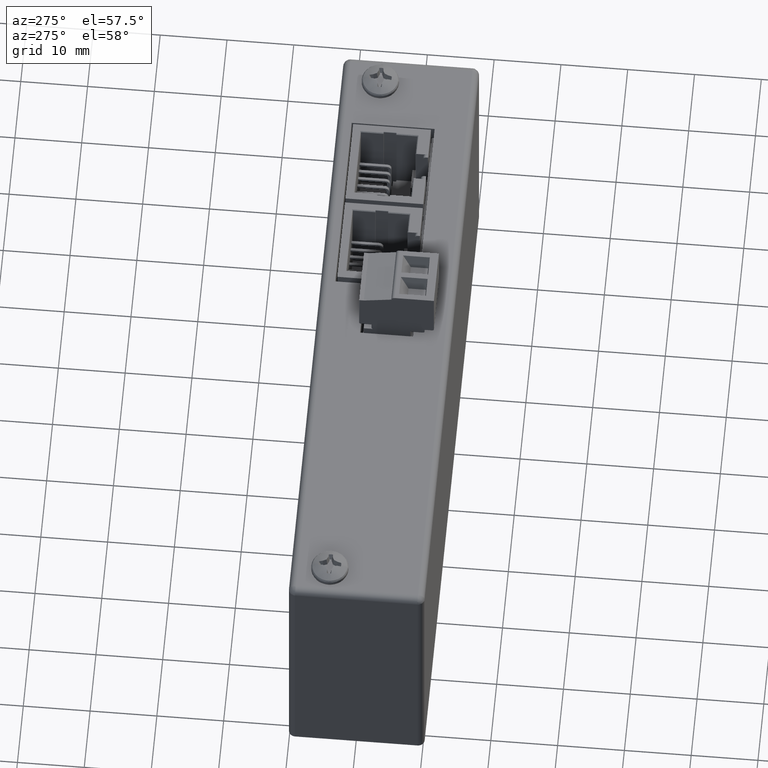
[diagram: clean part render]
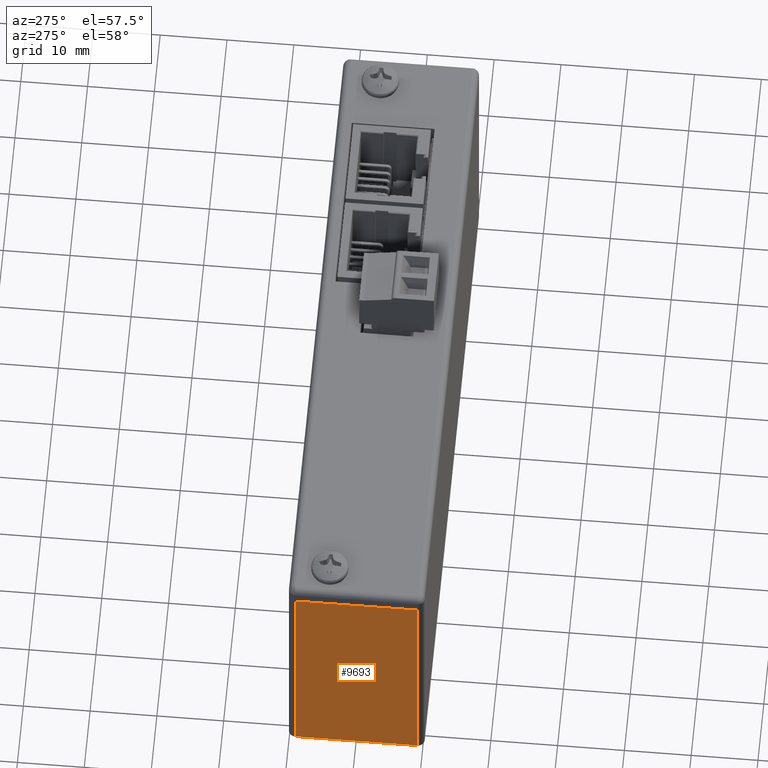
[diagram: same view with one face highlighted and labeled with its STEP entity id]
A machine part, auxiliary view. The second image highlights one B-rep face of the part: STEP entity #9693.
In plain terms, the highlighted planar face has unit normal (1, 0, 0).
Its self-contained STEP definition (entity closure, byte-faithful):
#131 = CARTESIAN_POINT ( 'NONE',  ( 1.517883041479706208E-15, 1.016000000000000014, 37.59199999999999875 ) ) ;
#159 = FACE_OUTER_BOUND ( 'NONE', #15682, .T. ) ;
#450 = VERTEX_POINT ( 'NONE', #131 ) ;
#1785 = VECTOR ( 'NONE', #25659, 1000.000000000000000 ) ;
#2169 = CARTESIAN_POINT ( 'NONE',  ( 0.000000000000000000, 19.30400000000000205, 37.59199999999999875 ) ) ;
#3930 = PLANE ( 'NONE',  #15528 ) ;
#4199 = DIRECTION ( 'NONE',  ( 0.000000000000000000, 0.000000000000000000, -1.000000000000000000 ) ) ;
#4396 = VERTEX_POINT ( 'NONE', #14614 ) ;
#6096 = CARTESIAN_POINT ( 'NONE',  ( 3.035766082959412415E-15, 1.016000000000000014, 37.59199999999999875 ) ) ;
#6155 = DIRECTION ( 'NONE',  ( 1.000000000000000000, -0.000000000000000000, 0.000000000000000000 ) ) ;
#6659 = ORIENTED_EDGE ( 'NONE', *, *, #21302, .F. ) ;
#7235 = VERTEX_POINT ( 'NONE', #2169 ) ;
#7794 = LINE ( 'NONE', #6096, #1785 ) ;
#8827 = DIRECTION ( 'NONE',  ( -0.000000000000000000, -0.000000000000000000, 1.000000000000000000 ) ) ;
#9693 = ADVANCED_FACE ( 'NONE', ( #159 ), #3930, .F. ) ;
#12665 = CARTESIAN_POINT ( 'NONE',  ( 0.000000000000000000, 2.540000000000000036, 37.59199999999999875 ) ) ;
#12980 = CARTESIAN_POINT ( 'NONE',  ( 0.000000000000000000, 19.30400000000000205, 0.000000000000000000 ) ) ;
#14567 = VECTOR ( 'NONE', #19732, 1000.000000000000000 ) ;
#14614 = CARTESIAN_POINT ( 'NONE',  ( 1.517883041479706208E-15, 1.016000000000000014, 0.000000000000000000 ) ) ;
#15528 = AXIS2_PLACEMENT_3D ( 'NONE', #19841, #6155, #4199 ) ;
#15682 = EDGE_LOOP ( 'NONE', ( #6659, #21092, #23239, #24336 ) ) ;
#17326 = LINE ( 'NONE', #25800, #25392 ) ;
#17705 = EDGE_CURVE ( 'NONE', #450, #7235, #20615, .T. ) ;
#18060 = EDGE_CURVE ( 'NONE', #24191, #4396, #17326, .T. ) ;
#19560 = CARTESIAN_POINT ( 'NONE',  ( 0.000000000000000000, 19.30400000000000205, 0.000000000000000000 ) ) ;
#19732 = DIRECTION ( 'NONE',  ( 0.000000000000000000, 1.000000000000000000, 0.000000000000000000 ) ) ;
#19799 = EDGE_CURVE ( 'NONE', #24191, #7235, #22748, .T. ) ;
#19841 = CARTESIAN_POINT ( 'NONE',  ( 0.000000000000000000, 0.000000000000000000, 0.000000000000000000 ) ) ;
#20615 = LINE ( 'NONE', #12665, #14567 ) ;
#20892 = VECTOR ( 'NONE', #8827, 1000.000000000000000 ) ;
#21092 = ORIENTED_EDGE ( 'NONE', *, *, #17705, .T. ) ;
#21302 = EDGE_CURVE ( 'NONE', #450, #4396, #7794, .T. ) ;
#22748 = LINE ( 'NONE', #12980, #20892 ) ;
#23239 = ORIENTED_EDGE ( 'NONE', *, *, #19799, .F. ) ;
#24191 = VERTEX_POINT ( 'NONE', #19560 ) ;
#24336 = ORIENTED_EDGE ( 'NONE', *, *, #18060, .T. ) ;
#25392 = VECTOR ( 'NONE', #25541, 1000.000000000000000 ) ;
#25541 = DIRECTION ( 'NONE',  ( 0.000000000000000000, -1.000000000000000000, -0.000000000000000000 ) ) ;
#25659 = DIRECTION ( 'NONE',  ( 0.000000000000000000, 0.000000000000000000, -1.000000000000000000 ) ) ;
#25800 = CARTESIAN_POINT ( 'NONE',  ( 0.000000000000000000, 0.000000000000000000, 0.000000000000000000 ) ) ;